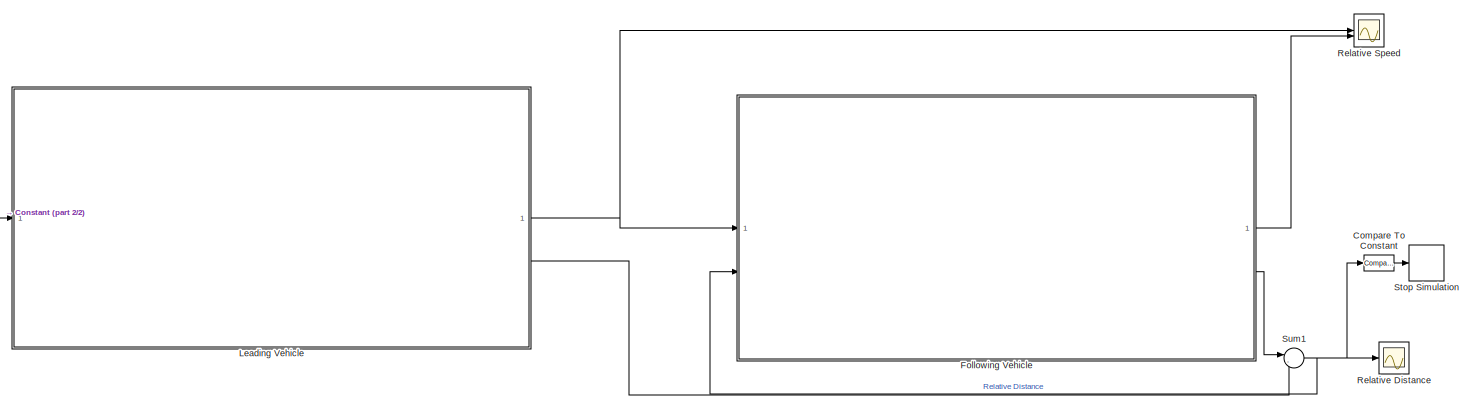
[diagram: root canvas - part 1/2, most of the canvas]
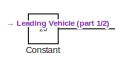
[diagram: root canvas - part 2/2, middle left region]
MODEL slx_5cabf13cac6e
KIND model
CONFIG AbsTol = auto
CONFIG EnableMultiTasking = off
CONFIG FixedStep = auto
CONFIG MaxStep = auto
CONFIG MinStep = auto
CONFIG RelTol = 1e-3
CONFIG SampleTimeConstraint = Unconstrained
CONFIG SolverName = VariableStepAuto
CONFIG StartTime = 0.0
CONFIG StopTime = 10
BLOCK [Reference] Compare To Constant  REF=simulink/Logic and Bit
Operations/Compare
To Constant
  SourceBlock = simulink/Logic and Bit\nOperations/Compare\nTo Constant
  SourceType = Compare To Constant
BLOCK [Constant] Constant
  Value = 20
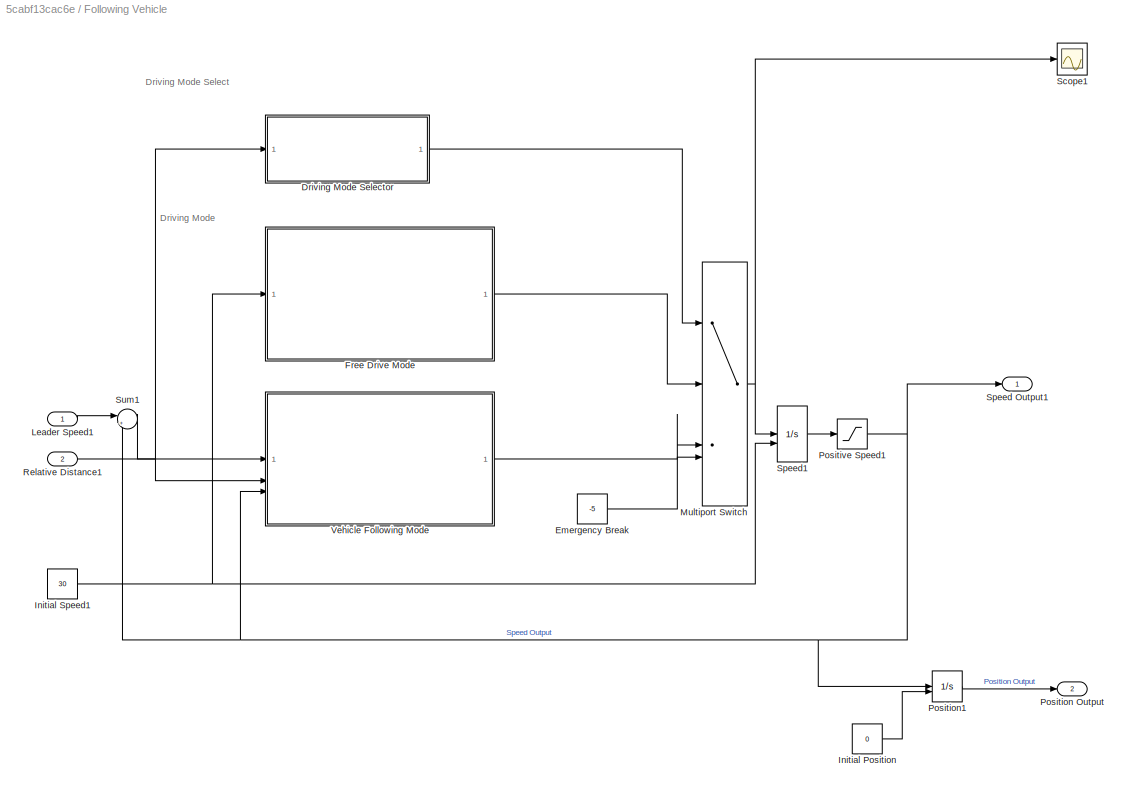
BLOCK [SubSystem] Following Vehicle
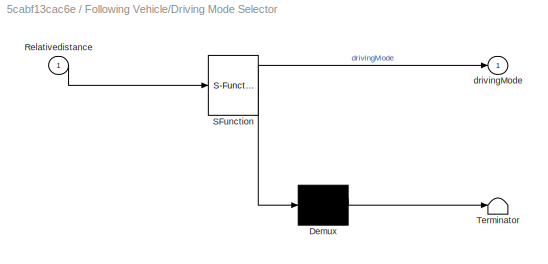
BLOCK [SubSystem] Following Vehicle/Driving Mode Selector
  ErrorFcn = Stateflow.Translate.translate
  PermitHierarchicalResolution = ExplicitOnly
  SFBlockType = Chart
  TreatAsAtomicUnit = on
BLOCK [Demux] Following Vehicle/Driving Mode Selector/ Demux 
  Outputs = 1
BLOCK [S-Function] Following Vehicle/Driving Mode Selector/ SFunction 
  EnableBusSupport = on
  FunctionName = sf_sfun
  PortCounts = [1 2]
  SFcnIsStateOwnerBlock = off
  SFunctionDeploymentMode = off
  Tag = Stateflow S-Function 3
BLOCK [Terminator] Following Vehicle/Driving Mode Selector/ Terminator 
BLOCK [Inport] Following Vehicle/Driving Mode Selector/Relativedistance
BLOCK [Outport] Following Vehicle/Driving Mode Selector/drivingMode
BLOCK [Constant] Following Vehicle/Emergency Break
  Value = -5
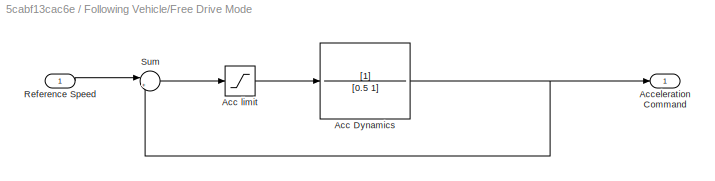
BLOCK [SubSystem] Following Vehicle/Free Drive Mode
BLOCK [TransferFcn] Following Vehicle/Free Drive Mode/Acc Dynamics
  Denominator = [0.5 1]
BLOCK [Saturate] Following Vehicle/Free Drive Mode/Acc limit
  LowerLimit = -3
  UpperLimit = 2
BLOCK [Outport] Following Vehicle/Free Drive Mode/Acceleration Command
BLOCK [Inport] Following Vehicle/Free Drive Mode/Reference Speed
BLOCK [Sum] Following Vehicle/Free Drive Mode/Sum
  Inputs = |+-
BLOCK [Constant] Following Vehicle/Initial Position
  Value = 0
BLOCK [Constant] Following Vehicle/Initial Speed1
  Value = 30
BLOCK [Inport] Following Vehicle/Leader Speed1
BLOCK [MultiPortSwitch] Following Vehicle/Multiport Switch
  InputSameDT = off
  SaturateOnIntegerOverflow = off
BLOCK [Outport] Following Vehicle/Position Output
  Port = 2
BLOCK [Integrator] Following Vehicle/Position1
  InitialConditionSource = external
BLOCK [Saturate] Following Vehicle/Positive Speed1
  LowerLimit = 0
  UpperLimit = inf
BLOCK [Inport] Following Vehicle/Relative Distance1
  Port = 2
BLOCK [Scope] Following Vehicle/Scope1
  Floating = off
  NumInputPorts = 1
  ScopeSpecificationString = Simulink.scopes.TimeScopeBlockCfg('CurrentConfiguration', extmgr.ConfigurationSet(extmgr.Configuration('Core','General UI',true),extmgr.Configuration('Core','Source UI',true),extmgr.Configuration('Sources','WiredSimulink',true,'DataLoggingVariableName','ScopeData2'),extmgr.Configuration('Visuals','Time Domain',true,'SerializedDisplays',{struct('MinYLimReal','-5.875','MaxYLimReal','2.875','YLabelRe...<+1416ch>
BLOCK [Outport] Following Vehicle/Speed Output1
BLOCK [Integrator] Following Vehicle/Speed1
  InitialConditionSource = external
BLOCK [Sum] Following Vehicle/Sum1
  Inputs = |+-
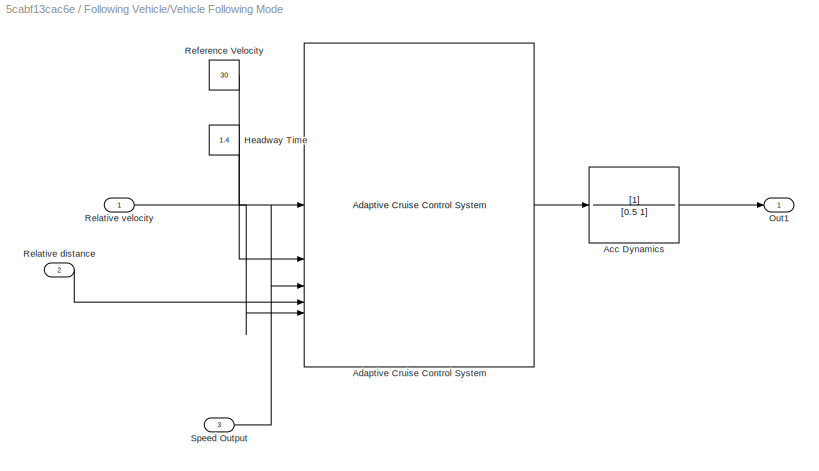
BLOCK [SubSystem] Following Vehicle/Vehicle Following Mode
BLOCK [TransferFcn] Following Vehicle/Vehicle Following Mode/Acc Dynamics
  Denominator = [0.5 1]
BLOCK [Reference] Following Vehicle/Vehicle Following Mode/Adaptive Cruise Control System  REF=mpcadaslib/Adaptive Cruise Control System
  LibrarySourceBlock = mpclib/Automated Driving/Adaptive Cruise Control System
  SourceBlock = mpcadaslib/Adaptive Cruise Control System
  SourceType = Adaptive cruise control (ACC) system
BLOCK [Constant] Following Vehicle/Vehicle Following Mode/Headway Time
  Value = 1.4
BLOCK [Outport] Following Vehicle/Vehicle Following Mode/Out1
BLOCK [Constant] Following Vehicle/Vehicle Following Mode/Reference Velocity
  Value = 30
BLOCK [Inport] Following Vehicle/Vehicle Following Mode/Relative distance
  Port = 2
BLOCK [Inport] Following Vehicle/Vehicle Following Mode/Relative velocity
BLOCK [Inport] Following Vehicle/Vehicle Following Mode/Speed Output
  Port = 3
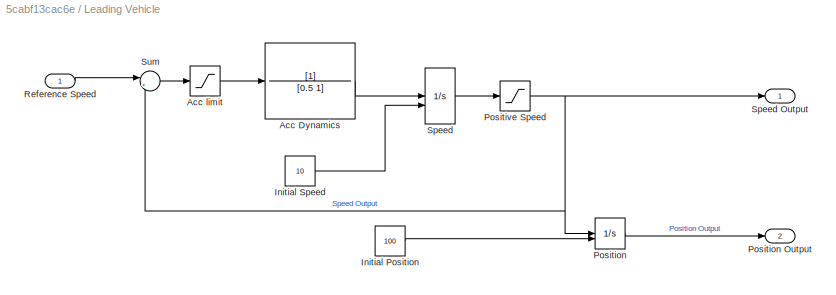
BLOCK [SubSystem] Leading Vehicle
BLOCK [TransferFcn] Leading Vehicle/Acc Dynamics
  Denominator = [0.5 1]
BLOCK [Saturate] Leading Vehicle/Acc limit
  LowerLimit = -3
  UpperLimit = 2
BLOCK [Constant] Leading Vehicle/Initial Position
  Value = 100
BLOCK [Constant] Leading Vehicle/Initial Speed
  Value = 10
BLOCK [Integrator] Leading Vehicle/Position
  InitialConditionSource = external
BLOCK [Outport] Leading Vehicle/Position Output
  Port = 2
BLOCK [Saturate] Leading Vehicle/Positive Speed
  LowerLimit = 0
  UpperLimit = inf
BLOCK [Inport] Leading Vehicle/Reference Speed
BLOCK [Integrator] Leading Vehicle/Speed
  InitialConditionSource = external
BLOCK [Outport] Leading Vehicle/Speed Output
BLOCK [Sum] Leading Vehicle/Sum
  Inputs = |+-
BLOCK [Scope] Relative Distance
  Floating = off
  NumInputPorts = 1
  ScopeSpecificationString = Simulink.scopes.TimeScopeBlockCfg('CurrentConfiguration', extmgr.ConfigurationSet(extmgr.Configuration('Core','General UI',true),extmgr.Configuration('Core','Source UI',true),extmgr.Configuration('Sources','WiredSimulink',true),extmgr.Configuration('Visuals','Time Domain',true,'SerializedDisplays',{struct('MinYLimReal','12.95573','MaxYLimReal','109.67159','YLabelReal','','MinYLimMag','12.95573','M...<+1400ch>
BLOCK [Scope] Relative Speed
  Floating = off
  NumInputPorts = 2
  ScopeSpecificationString = Simulink.scopes.TimeScopeBlockCfg('CurrentConfiguration', extmgr.ConfigurationSet(extmgr.Configuration('Core','General UI',true),extmgr.Configuration('Core','Source UI',true),extmgr.Configuration('Sources','WiredSimulink',true,'DataLoggingVariableName','ScopeData3'),extmgr.Configuration('Visuals','Time Domain',true,'SerializedDisplays',{struct('MinYLimReal','-4.07634','MaxYLimReal','37.13994','YLa...<+1575ch>
BLOCK [Stop] Stop Simulation
BLOCK [Sum] Sum1
  Inputs = |-+
ANNOTATION Following Vehicle: Driving Mode
ANNOTATION Following Vehicle: Driving Mode Select
LINE Compare To Constant:1 -> Stop Simulation:1
LINE Constant:1 -> Leading Vehicle:1
LINE Following Vehicle/Driving Mode Selector:1 -> Following Vehicle/Multiport Switch:1
LINE Following Vehicle/Emergency Break:1 -> Following Vehicle/Multiport Switch:4
NET Following Vehicle/Free Drive Mode/Acc Dynamics:1 -> Following Vehicle/Free Drive Mode/Acceleration Command:1, Following Vehicle/Free Drive Mode/Sum:2
LINE Following Vehicle/Free Drive Mode/Acc limit:1 -> Following Vehicle/Free Drive Mode/Acc Dynamics:1
LINE Following Vehicle/Free Drive Mode/Reference Speed:1 -> Following Vehicle/Free Drive Mode/Sum:1
LINE Following Vehicle/Free Drive Mode/Sum:1 -> Following Vehicle/Free Drive Mode/Acc limit:1
LINE Following Vehicle/Free Drive Mode:1 -> Following Vehicle/Multiport Switch:2
LINE Following Vehicle/Initial Position:1 -> Following Vehicle/Position1:2
NET Following Vehicle/Initial Speed1:1 -> Following Vehicle/Free Drive Mode:1, Following Vehicle/Speed1:2
LINE Following Vehicle/Leader Speed1:1 -> Following Vehicle/Sum1:1
NET Following Vehicle/Multiport Switch:1 -> Following Vehicle/Scope1:1, Following Vehicle/Speed1:1
LINE Following Vehicle/Position1:1 -> Following Vehicle/Position Output:1
NET Following Vehicle/Positive Speed1:1 -> Following Vehicle/Position1:1, Following Vehicle/Speed Output1:1, Following Vehicle/Sum1:2, Following Vehicle/Vehicle Following Mode:3
NET Following Vehicle/Relative Distance1:1 -> Following Vehicle/Driving Mode Selector:1, Following Vehicle/Vehicle Following Mode:2
LINE Following Vehicle/Speed1:1 -> Following Vehicle/Positive Speed1:1
LINE Following Vehicle/Sum1:1 -> Following Vehicle/Vehicle Following Mode:1
LINE Following Vehicle/Vehicle Following Mode/Acc Dynamics:1 -> Following Vehicle/Vehicle Following Mode/Out1:1
LINE Following Vehicle/Vehicle Following Mode/Adaptive Cruise Control System:1 -> Following Vehicle/Vehicle Following Mode/Acc Dynamics:1
LINE Following Vehicle/Vehicle Following Mode/Headway Time:1 -> Following Vehicle/Vehicle Following Mode/Adaptive Cruise Control System:2
LINE Following Vehicle/Vehicle Following Mode/Reference Velocity:1 -> Following Vehicle/Vehicle Following Mode/Adaptive Cruise Control System:1
LINE Following Vehicle/Vehicle Following Mode/Relative distance:1 -> Following Vehicle/Vehicle Following Mode/Adaptive Cruise Control System:4
LINE Following Vehicle/Vehicle Following Mode/Relative velocity:1 -> Following Vehicle/Vehicle Following Mode/Adaptive Cruise Control System:5
LINE Following Vehicle/Vehicle Following Mode/Speed Output:1 -> Following Vehicle/Vehicle Following Mode/Adaptive Cruise Control System:3
LINE Following Vehicle/Vehicle Following Mode:1 -> Following Vehicle/Multiport Switch:3
LINE Following Vehicle:1 -> Relative Speed:2
LINE Following Vehicle:2 -> Sum1:1
LINE Leading Vehicle/Acc Dynamics:1 -> Leading Vehicle/Speed:1
LINE Leading Vehicle/Acc limit:1 -> Leading Vehicle/Acc Dynamics:1
LINE Leading Vehicle/Initial Position:1 -> Leading Vehicle/Position:2
LINE Leading Vehicle/Initial Speed:1 -> Leading Vehicle/Speed:2
LINE Leading Vehicle/Position:1 -> Leading Vehicle/Position Output:1
NET Leading Vehicle/Positive Speed:1 -> Leading Vehicle/Position:1, Leading Vehicle/Speed Output:1, Leading Vehicle/Sum:2
LINE Leading Vehicle/Reference Speed:1 -> Leading Vehicle/Sum:1
LINE Leading Vehicle/Speed:1 -> Leading Vehicle/Positive Speed:1
LINE Leading Vehicle/Sum:1 -> Leading Vehicle/Acc limit:1
NET Leading Vehicle:1 -> Following Vehicle:1, Relative Speed:1
LINE Leading Vehicle:2 -> Sum1:2
NET Sum1:1 -> Compare To Constant:1, Following Vehicle:2, Relative Distance:1
note: NET lines group one-source signal fan-out (src -> all destinations, sorted); 1:1 wires keep LINE
CHART Following Vehicle/Driving Mode Selector states=3 transitions=6
  STATE_LABEL 'FreeDrive\nentry:\ndrivingMode=1;'
  STATE_LABEL 'VehicleFollowing\nentry:\ndrivingMode=2;\n'
  STATE_LABEL 'EmergencyBrake\nentry:\ndrivingMode=3;'
CHART  states=0 transitions=0
